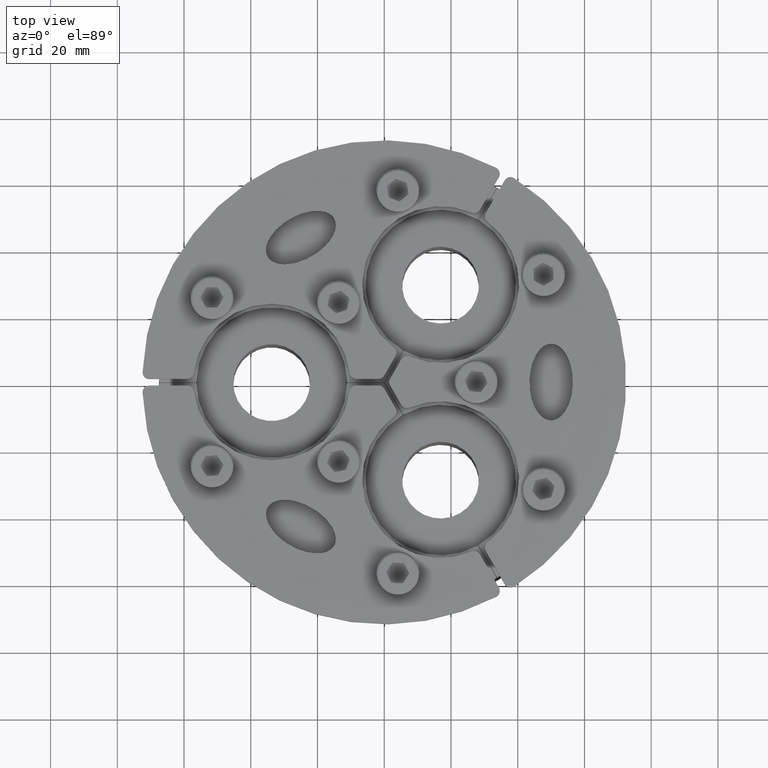
[diagram: clean part render]
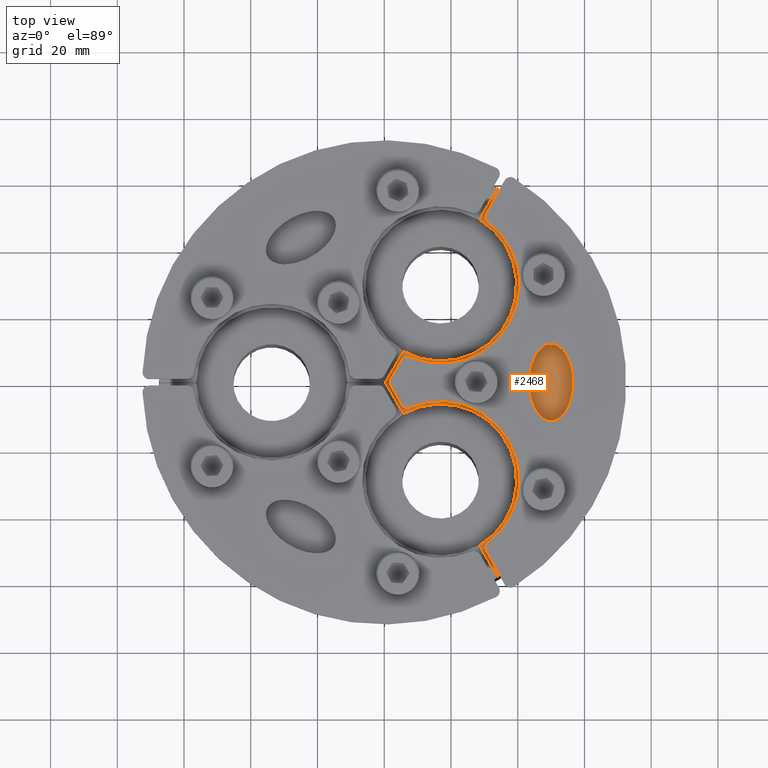
[diagram: same view with one face highlighted and labeled with its STEP entity id]
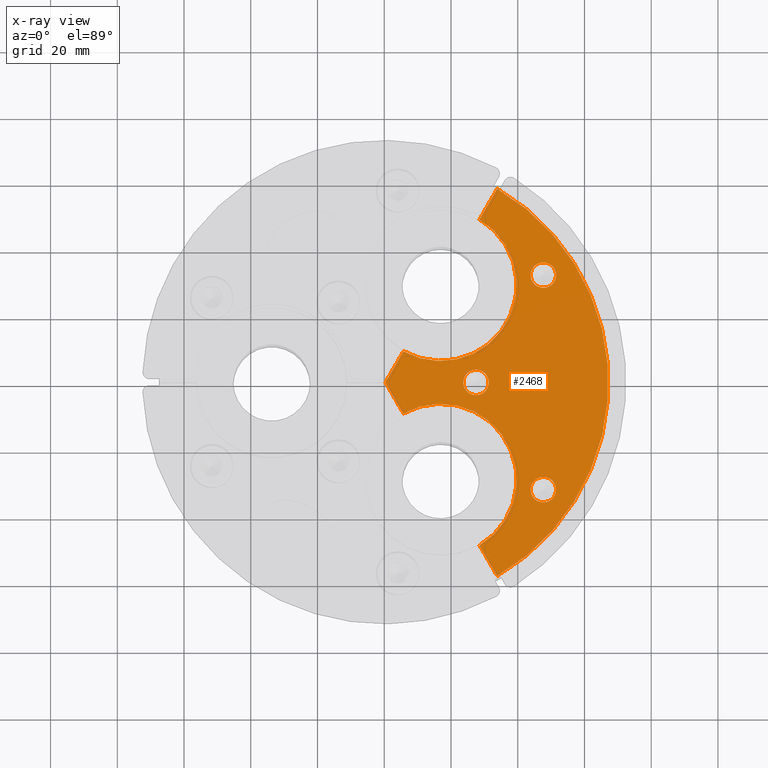
[diagram: x-ray of the same camera — body ghosted, the highlighted face saturated]
A machine part, top view. The second image highlights one B-rep face of the part: STEP entity #2468.
The next image is the same camera in x-ray: the body ghosted, the highlighted face saturated — about 0% of this face is hidden behind the body in this view.
In plain terms, the highlighted planar face has unit normal (0, 0, 1).
Its self-contained STEP definition (entity closure, byte-faithful):
#2365=CARTESIAN_POINT('',(7.810997240287191,57.359932889939898,60.0));
#2366=VERTEX_POINT('',#2365);
#2367=CARTESIAN_POINT('',(4.010997240287192,57.359932889939898,60.0));
#2368=DIRECTION('',(0.0,0.0,1.0));
#2369=DIRECTION('',(-1.0,0.0,0.0));
#2370=AXIS2_PLACEMENT_3D('',#2367,#2368,#2369);
#2371=CIRCLE('',#2370,3.8);
#2372=EDGE_CURVE('',#2366,#2366,#2371,.T.);
#2377=CARTESIAN_POINT('',(-18.776743437499032,32.52227363443383,60.0));
#2378=DIRECTION('',(0.0,0.0,1.0));
#2379=DIRECTION('',(1.0,0.0,0.0));
#2380=AXIS2_PLACEMENT_3D('',#2377,#2378,#2379);
#2381=PLANE('',#2380);
#2382=CARTESIAN_POINT('',(-67.199330353806346,0.299999999999992,60.0));
#2383=VERTEX_POINT('',#2382);
#2384=CARTESIAN_POINT('',(33.339857555767843,58.346327203699033,60.0));
#2385=VERTEX_POINT('',#2384);
#2386=CARTESIAN_POINT('',(0.0,0.0,60.0));
#2387=DIRECTION('',(0.0,0.0,-1.0));
#2388=DIRECTION('',(-0.5,0.866025403784439,0.0));
#2389=AXIS2_PLACEMENT_3D('',#2386,#2387,#2388);
#2390=CIRCLE('',#2389,67.199999999999989);
#2391=EDGE_CURVE('',#2383,#2385,#2390,.T.);
#2392=ORIENTED_EDGE('',*,*,#2391,.F.);
#2393=CARTESIAN_POINT('',(-56.548026230356001,0.299999999999995,60.0));
#2394=VERTEX_POINT('',#2393);
#2395=CARTESIAN_POINT('',(-56.548026230356001,0.299999999999993,60.0));
#2396=DIRECTION('',(-1.0,0.0,0.0));
#2397=VECTOR('',#2396,10.651304123450345);
#2398=LINE('',#2395,#2397);
#2399=EDGE_CURVE('',#2394,#2383,#2398,.T.);
#2400=ORIENTED_EDGE('',*,*,#2399,.F.);
#2401=CARTESIAN_POINT('',(-10.951973769644002,0.299999999999998,60.0));
#2402=VERTEX_POINT('',#2401);
#2403=CARTESIAN_POINT('',(-33.75,0.0,60.0));
#2404=DIRECTION('',(0.0,0.0,1.0));
#2405=DIRECTION('',(0.0,1.0,0.0));
#2406=AXIS2_PLACEMENT_3D('',#2403,#2404,#2405);
#2407=CIRCLE('',#2406,22.799999999999997);
#2408=EDGE_CURVE('',#2402,#2394,#2407,.T.);
#2409=ORIENTED_EDGE('',*,*,#2408,.F.);
#2410=CARTESIAN_POINT('',(-0.173205080756887,0.299999999999996,60.0));
#2411=VERTEX_POINT('',#2410);
#2412=CARTESIAN_POINT('',(-0.173205080756887,0.299999999999999,60.0));
#2413=DIRECTION('',(-1.0,0.0,0.0));
#2414=VECTOR('',#2413,10.778768688887116);
#2415=LINE('',#2412,#2414);
#2416=EDGE_CURVE('',#2411,#2402,#2415,.T.);
#2417=ORIENTED_EDGE('',*,*,#2416,.F.);
#2418=CARTESIAN_POINT('',(5.216179263686673,9.634687506092529,60.0));
#2419=VERTEX_POINT('',#2418);
#2420=CARTESIAN_POINT('',(5.216179263686673,9.634687506092529,60.0));
#2421=DIRECTION('',(-0.5,-0.866025403784439,0.0));
#2422=VECTOR('',#2421,10.778768688887123);
#2423=LINE('',#2420,#2422);
#2424=EDGE_CURVE('',#2419,#2411,#2423,.T.);
#2425=ORIENTED_EDGE('',*,*,#2424,.F.);
#2426=CARTESIAN_POINT('',(28.014205494042663,49.122027249357089,60.0));
#2427=VERTEX_POINT('',#2426);
#2428=CARTESIAN_POINT('',(16.875,29.228357377724805,60.0));
#2429=DIRECTION('',(0.0,0.0,1.0));
#2430=DIRECTION('',(-0.866025403784439,0.5,0.0));
#2431=AXIS2_PLACEMENT_3D('',#2428,#2429,#2430);
#2432=CIRCLE('',#2431,22.799999999999997);
#2433=EDGE_CURVE('',#2427,#2419,#2432,.T.);
#2434=ORIENTED_EDGE('',*,*,#2433,.F.);
#2435=CARTESIAN_POINT('',(33.339857555767857,58.346327203699033,60.0));
#2436=DIRECTION('',(-0.500000000000001,-0.866025403784438,0.0));
#2437=VECTOR('',#2436,10.651304123450355);
#2438=LINE('',#2435,#2437);
#2439=EDGE_CURVE('',#2385,#2427,#2438,.T.);
#2440=ORIENTED_EDGE('',*,*,#2439,.F.);
#2441=EDGE_LOOP('',(#2392,#2400,#2409,#2417,#2425,#2434,#2440));
#2442=FACE_OUTER_BOUND('',#2441,.T.);
#2443=CARTESIAN_POINT('',(-9.949999999999982,23.815698604072072,60.0));
#2444=VERTEX_POINT('',#2443);
#2445=CARTESIAN_POINT('',(-13.749999999999982,23.815698604072072,60.0));
#2446=DIRECTION('',(0.0,0.0,1.0));
#2447=DIRECTION('',(-1.0,0.0,0.0));
#2448=AXIS2_PLACEMENT_3D('',#2445,#2446,#2447);
#2449=CIRCLE('',#2448,3.8);
#2450=EDGE_CURVE('',#2444,#2444,#2449,.T.);
#2451=ORIENTED_EDGE('',*,*,#2450,.F.);
#2452=EDGE_LOOP('',(#2451));
#2453=FACE_BOUND('',#2452,.T.);
#2454=CARTESIAN_POINT('',(-47.880657662202097,25.206340940371945,60.0));
#2455=VERTEX_POINT('',#2454);
#2456=CARTESIAN_POINT('',(-51.680657662202094,25.206340940371945,60.0));
#2457=DIRECTION('',(0.0,0.0,1.0));
#2458=DIRECTION('',(-1.0,0.0,0.0));
#2459=AXIS2_PLACEMENT_3D('',#2456,#2457,#2458);
#2460=CIRCLE('',#2459,3.8);
#2461=EDGE_CURVE('',#2455,#2455,#2460,.T.);
#2462=ORIENTED_EDGE('',*,*,#2461,.F.);
#2463=EDGE_LOOP('',(#2462));
#2464=FACE_BOUND('',#2463,.T.);
#2465=ORIENTED_EDGE('',*,*,#2372,.F.);
#2466=EDGE_LOOP('',(#2465));
#2467=FACE_BOUND('',#2466,.T.);
#2468=ADVANCED_FACE('',(#2442,#2453,#2464,#2467),#2381,.T.);